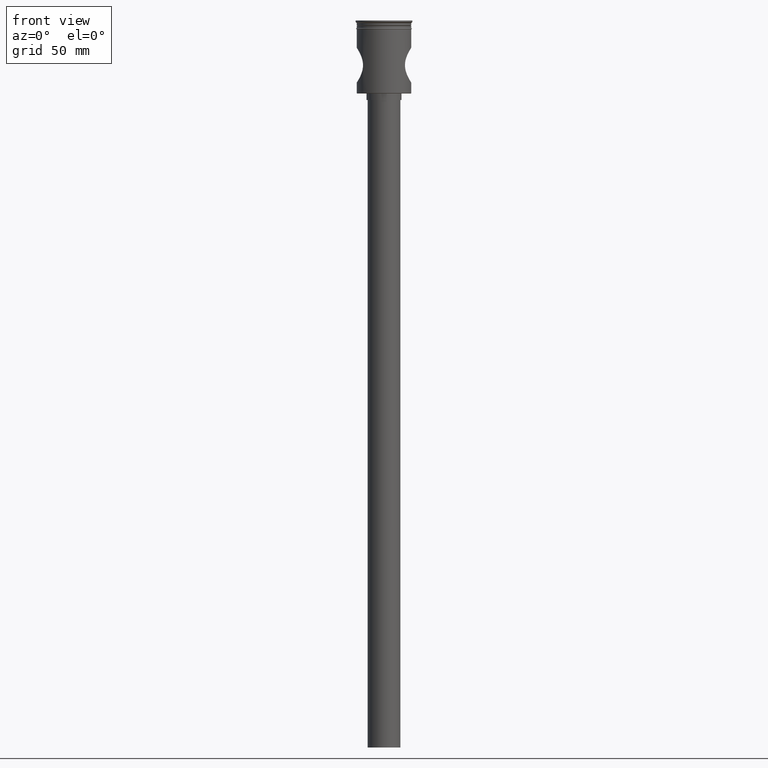
[diagram: clean part render]
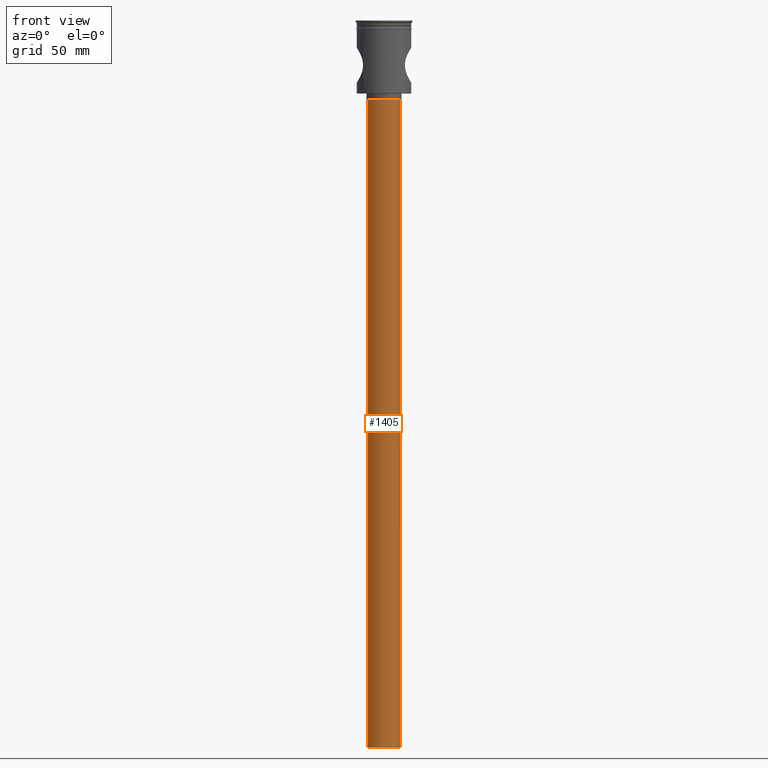
[diagram: same view with one face highlighted and labeled with its STEP entity id]
A machine part, front view. The second image highlights one B-rep face of the part: STEP entity #1405.
In plain terms, the highlighted cylindrical surface (edge-blend (fillet) strip) has radius 7.5 mm, axis along (-0, -0, 1).
Its self-contained STEP definition (entity closure, byte-faithful):
#15 = CARTESIAN_POINT ( 'NONE',  ( 0.000000000000000000, 0.000000000000000000, -333.5000000000000000 ) ) ;
#82 = CARTESIAN_POINT ( 'NONE',  ( 7.500000000000000000, 0.000000000000000000, -333.5000000000000000 ) ) ;
#85 = EDGE_CURVE ( 'NONE', #1004, #1551, #827, .T. ) ;
#129 = ORIENTED_EDGE ( 'NONE', *, *, #85, .T. ) ;
#140 = CARTESIAN_POINT ( 'NONE',  ( -7.500000000000000000, 9.184850993605147944E-16, -333.5000000000000000 ) ) ;
#152 = LINE ( 'NONE', #403, #370 ) ;
#201 = LINE ( 'NONE', #82, #1546 ) ;
#370 = VECTOR ( 'NONE', #1352, 1000.000000000000000 ) ;
#403 = CARTESIAN_POINT ( 'NONE',  ( -7.500000000000000000, 9.184850993605147944E-16, -333.5000000000000000 ) ) ;
#433 = EDGE_LOOP ( 'NONE', ( #1488, #437, #1265, #129 ) ) ;
#437 = ORIENTED_EDGE ( 'NONE', *, *, #556, .F. ) ;
#447 = DIRECTION ( 'NONE',  ( -1.000000000000000000, 0.000000000000000000, 0.000000000000000000 ) ) ;
#556 = EDGE_CURVE ( 'NONE', #1409, #910, #660, .T. ) ;
#603 = FACE_OUTER_BOUND ( 'NONE', #433, .T. ) ;
#637 = AXIS2_PLACEMENT_3D ( 'NONE', #856, #1520, #447 ) ;
#641 = CARTESIAN_POINT ( 'NONE',  ( 7.500000000000000000, 0.000000000000000000, -333.5000000000000000 ) ) ;
#660 = CIRCLE ( 'NONE', #637, 7.500000000000000000 ) ;
#794 = AXIS2_PLACEMENT_3D ( 'NONE', #15, #1027, #1247 ) ;
#827 = CIRCLE ( 'NONE', #1023, 7.500000000000000000 ) ;
#828 = EDGE_CURVE ( 'NONE', #910, #1551, #152, .T. ) ;
#856 = CARTESIAN_POINT ( 'NONE',  ( 0.000000000000000000, 0.000000000000000000, -333.5000000000000000 ) ) ;
#910 = VERTEX_POINT ( 'NONE', #140 ) ;
#1004 = VERTEX_POINT ( 'NONE', #1506 ) ;
#1023 = AXIS2_PLACEMENT_3D ( 'NONE', #1408, #1174, #1309 ) ;
#1027 = DIRECTION ( 'NONE',  ( -0.000000000000000000, -0.000000000000000000, 1.000000000000000000 ) ) ;
#1080 = CYLINDRICAL_SURFACE ( 'NONE', #794, 7.500000000000000000 ) ;
#1172 = CARTESIAN_POINT ( 'NONE',  ( -7.500000000000000000, 9.184850993605147944E-16, -36.50000000000000711 ) ) ;
#1174 = DIRECTION ( 'NONE',  ( 0.000000000000000000, 0.000000000000000000, -1.000000000000000000 ) ) ;
#1247 = DIRECTION ( 'NONE',  ( 1.000000000000000000, 0.000000000000000000, 0.000000000000000000 ) ) ;
#1265 = ORIENTED_EDGE ( 'NONE', *, *, #1359, .T. ) ;
#1292 = DIRECTION ( 'NONE',  ( -0.000000000000000000, -0.000000000000000000, 1.000000000000000000 ) ) ;
#1309 = DIRECTION ( 'NONE',  ( -1.000000000000000000, 0.000000000000000000, 0.000000000000000000 ) ) ;
#1352 = DIRECTION ( 'NONE',  ( -0.000000000000000000, -0.000000000000000000, 1.000000000000000000 ) ) ;
#1359 = EDGE_CURVE ( 'NONE', #1409, #1004, #201, .T. ) ;
#1405 = ADVANCED_FACE ( 'NONE', ( #603 ), #1080, .T. ) ;
#1408 = CARTESIAN_POINT ( 'NONE',  ( 0.000000000000000000, 0.000000000000000000, -36.50000000000000711 ) ) ;
#1409 = VERTEX_POINT ( 'NONE', #641 ) ;
#1488 = ORIENTED_EDGE ( 'NONE', *, *, #828, .F. ) ;
#1506 = CARTESIAN_POINT ( 'NONE',  ( 7.500000000000000000, 0.000000000000000000, -36.50000000000000711 ) ) ;
#1520 = DIRECTION ( 'NONE',  ( 0.000000000000000000, 0.000000000000000000, -1.000000000000000000 ) ) ;
#1546 = VECTOR ( 'NONE', #1292, 1000.000000000000000 ) ;
#1551 = VERTEX_POINT ( 'NONE', #1172 ) ;